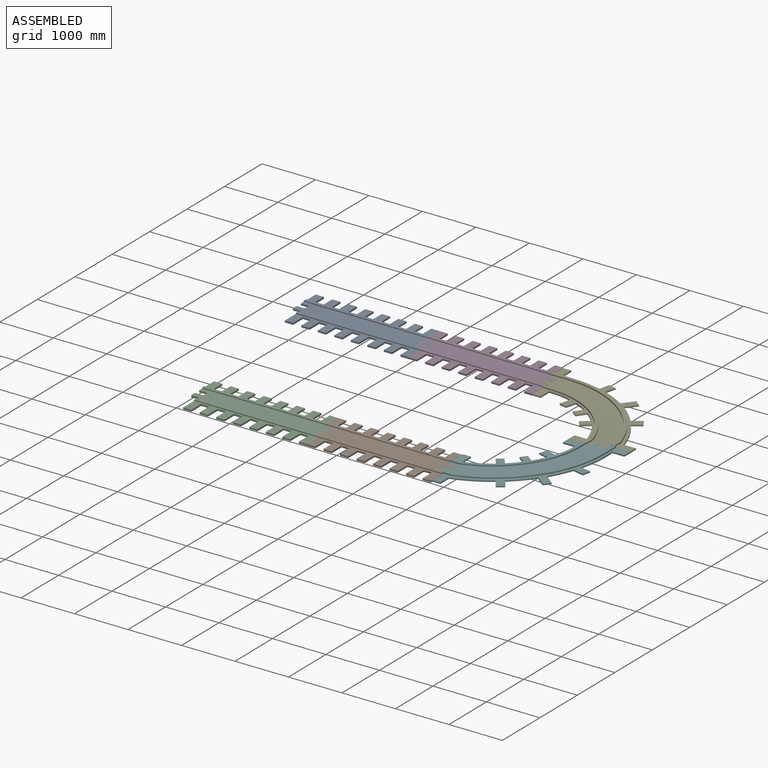
[diagram: assembled view]
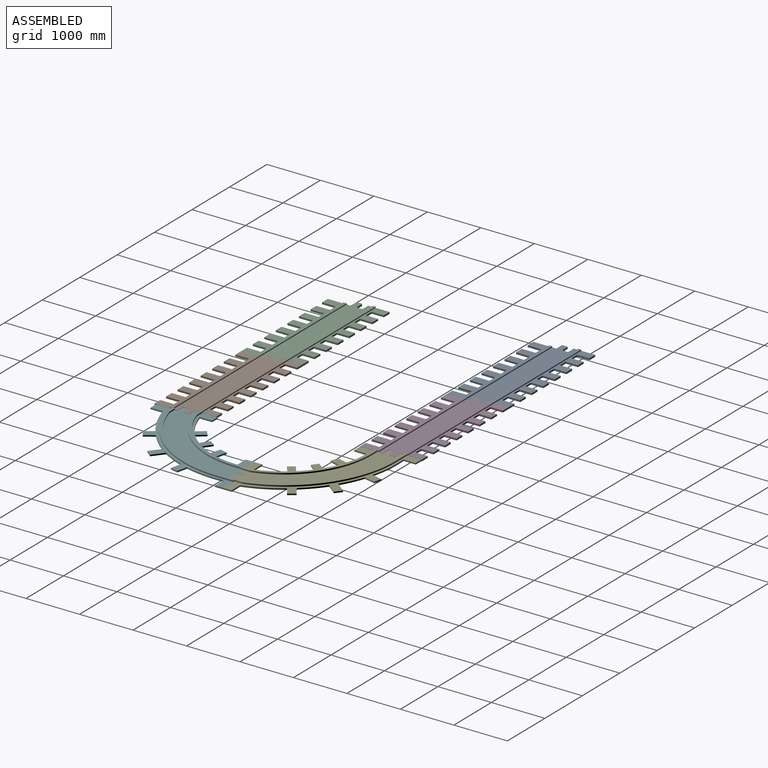
[diagram: assembled view, second angle]
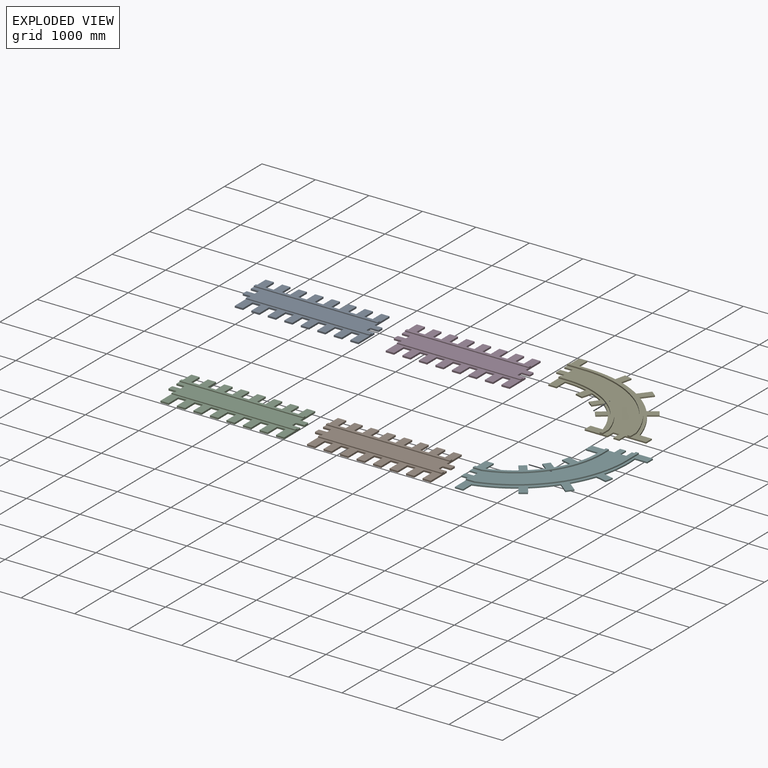
[diagram: exploded view]
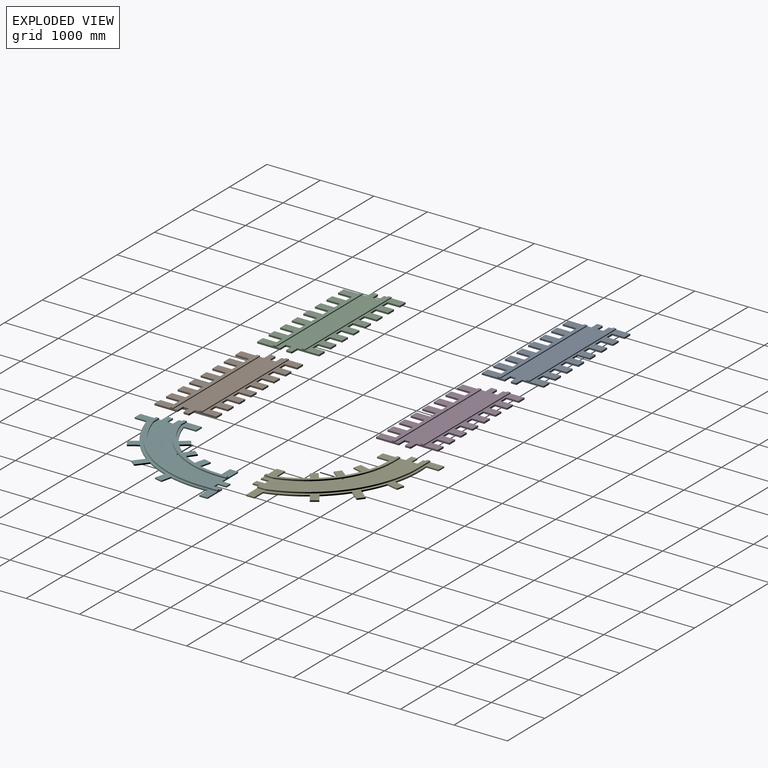
[diagram: exploded view, second angle]
ASSEMBLY  parts=6 mates=5
PART A: 97 faces, bbox 2469.2x1048.8x50.8 mm
  f0: plane 294.58x31.75mm, normal (-1,0,0), area 9353.1mm2, adj f3,f38,f86,f95
  f1: plane 81.11x31.75mm, normal (-1,0,0), area 2575.3mm2, adj f3,f28,f86,f88
  f2: plane 81.11x31.75mm, normal (1,0,0), area 2575.3mm2, adj f3,f76,f86,f88
  f3: plane 2468.9x728.98mm, normal (0,0,1), area 1276293.4mm2, adj f0,f1,f2,f28,f29,f30,f31,f32
  f4: plane 154.31x31.75mm, normal (0,1,0), area 4899.2mm2, adj f5,f84,f85,f86
  f5: plane 228.83x31.75mm, normal (1,0,0), area 7265.3mm2, adj f4,f6,f85,f86
  f6: plane 154.31x31.75mm, normal (0,1,0), area 4899.2mm2, adj f5,f7,f85,f86
  f7: plane 228.83x31.75mm, normal (-1,0,0), area 7265.3mm2, adj f6,f8,f85,f86
  f8: plane 154.31x31.75mm, normal (0,1,0), area 4899.2mm2, adj f7,f9,f85,f86
  f9: plane 228.83x31.75mm, normal (1,0,0), area 7265.3mm2, adj f8,f10,f85,f86
  f10: plane 154.31x31.75mm, normal (0,1,0), area 4899.2mm2, adj f9,f11,f85,f86
  f11: plane 228.83x31.75mm, normal (-1,0,0), area 7265.3mm2, adj f10,f12,f85,f86
  f12: plane 154.31x31.75mm, normal (0,1,0), area 4899.2mm2, adj f11,f13,f85,f86
  f13: plane 228.83x31.75mm, normal (1,0,0), area 7265.3mm2, adj f12,f14,f85,f86
  f14: plane 154.31x31.75mm, normal (0,1,0), area 4899.2mm2, adj f13,f15,f85,f86
  f15: plane 228.83x31.75mm, normal (-1,0,0), area 7265.3mm2, adj f14,f16,f85,f86
  f16: plane 154.31x31.75mm, normal (0,1,0), area 4899.2mm2, adj f15,f17,f85,f86
  f17: plane 227.75x31.75mm, normal (1,0,0), area 7231mm2, adj f16,f18,f85,f86
  f18: plane 154.31x31.75mm, normal (0,1,0), area 4899.2mm2, adj f17,f19,f85,f86
  f19: plane 227.75x31.75mm, normal (-1,0,0), area 7231mm2, adj f18,f20,f85,f86
  f20: plane 154.31x31.75mm, normal (0,1,0), area 4899.2mm2, adj f19,f21,f85,f86
  f21: plane 227.75x31.75mm, normal (1,0,0), area 7231mm2, adj f20,f22,f85,f86
  f22: plane 154.31x31.75mm, normal (0,1,0), area 4899.2mm2, adj f21,f23,f85,f86
  f23: plane 227.75x31.75mm, normal (-1,0,0), area 7231mm2, adj f22,f24,f85,f86
  f24: plane 154.31x31.75mm, normal (0,1,0), area 4899.2mm2, adj f23,f25,f85,f86
  f25: plane 227.75x31.75mm, normal (1,0,0), area 7231mm2, adj f24,f26,f85,f86
  f26: plane 154.31x31.75mm, normal (0,1,0), area 4899.2mm2, adj f25,f27,f85,f86
  f27: plane 261.62x31.75mm, normal (-1,0,0), area 8306.5mm2, adj f26,f85,f86,f90
  f28: plane 141.61x31.75mm, normal (0,-1,0), area 4496mm2, adj f1,f3,f29,f86
  f29: cylinder r=12.7mm len=31.75mm, axis (0,0,-1), area 633.4mm2, adj f3,f28,f30,f86
  f30: plane 84.61x31.75mm, normal (-1,0,0), area 2686.3mm2, adj f3,f29,f31,f86
  f31: cylinder r=12.7mm len=31.75mm, axis (0,0,-1), area 633.4mm2, adj f3,f30,f32,f86
  f32: plane 128.91x31.75mm, normal (0,1,0), area 4092.7mm2, adj f3,f31,f33,f86
  f33: cylinder r=12.7mm len=31.75mm, axis (0,0,-1), area 633.4mm2, adj f3,f32,f34,f86
  f34: plane 84.61x31.75mm, normal (-1,0,0), area 2686.3mm2, adj f3,f33,f35,f86
  f35: cylinder r=12.7mm len=31.75mm, axis (0,0,-1), area 633.4mm2, adj f3,f34,f36,f86
  f36: plane 141.61x31.75mm, normal (0,-1,0), area 4496mm2, adj f3,f35,f37,f86
  f37: plane 76.12x31.75mm, normal (-1,0,0), area 2416.8mm2, adj f3,f36,f86,f93
  f38: plane 154.31x31.75mm, normal (0,-1,0), area 4899.5mm2, adj f0,f3,f39,f86
  f39: plane 258.05x31.75mm, normal (1,0,0), area 8193.2mm2, adj f3,f38,f40,f86
  f40: plane 154.31x31.75mm, normal (0,-1,0), area 4899.2mm2, adj f3,f39,f41,f86
  f41: plane 258.05x31.75mm, normal (-1,0,0), area 8193.2mm2, adj f3,f40,f42,f86
  f42: plane 154.31x31.75mm, normal (0,-1,0), area 4899.5mm2, adj f3,f41,f43,f86
  f43: plane 258.05x31.75mm, normal (1,0,0), area 8193.2mm2, adj f3,f42,f44,f86
  f44: plane 154.31x31.75mm, normal (0,-1,0), area 4899.2mm2, adj f3,f43,f45,f86
  f45: plane 258.05x31.75mm, normal (-1,0,0), area 8193.2mm2, adj f3,f44,f46,f86
  f46: plane 154.31x31.75mm, normal (0,-1,0), area 4899.2mm2, adj f3,f45,f47,f86
  f47: plane 258.05x31.75mm, normal (1,0,0), area 8193.2mm2, adj f3,f46,f48,f86
  f48: plane 154.31x31.75mm, normal (0,-1,0), area 4899.2mm2, adj f3,f47,f49,f86
  f49: plane 258.05x31.75mm, normal (-1,0,0), area 8193.2mm2, adj f3,f48,f50,f86
  f50: plane 154.31x31.75mm, normal (0,-1,0), area 4899.2mm2, adj f3,f49,f51,f86
  f51: plane 258.05x31.75mm, normal (1,0,0), area 8193.2mm2, adj f3,f50,f52,f86
  f52: plane 154.31x31.75mm, normal (0,-1,0), area 4899.2mm2, adj f3,f51,f53,f86
  f53: plane 258.05x31.75mm, normal (-1,0,0), area 8193.2mm2, adj f3,f52,f54,f86
  f54: plane 154.31x31.75mm, normal (0,-1,0), area 4899.2mm2, adj f3,f53,f55,f86
  f55: plane 258.05x31.75mm, normal (1,0,0), area 8193.2mm2, adj f3,f54,f56,f86
  f56: plane 154.31x31.75mm, normal (0,-1,0), area 4899.2mm2, adj f3,f55,f57,f86
  f57: plane 258.05x31.75mm, normal (-1,0,0), area 8193.2mm2, adj f3,f56,f58,f86
  f58: plane 154.31x31.75mm, normal (0,-1,0), area 4899.2mm2, adj f3,f57,f59,f86
  f59: plane 258.05x31.75mm, normal (1,0,0), area 8193.2mm2, adj f3,f58,f60,f86
  f60: plane 154.31x31.75mm, normal (0,-1,0), area 4899.2mm2, adj f3,f59,f61,f86
  f61: plane 258.05x31.75mm, normal (-1,0,0), area 8193.2mm2, adj f3,f60,f62,f86
  f62: plane 154.31x31.75mm, normal (0,-1,0), area 4899.2mm2, adj f3,f61,f63,f86
  f63: plane 258.05x31.75mm, normal (1,0,0), area 8193.2mm2, adj f3,f62,f64,f86
  f64: plane 154.31x31.75mm, normal (0,-1,0), area 4899.2mm2, adj f3,f63,f65,f86
  f65: plane 258.05x31.75mm, normal (-1,0,0), area 8193.2mm2, adj f3,f64,f66,f86
  f66: plane 154.31x31.75mm, normal (0,-1,0), area 4899.2mm2, adj f3,f65,f67,f86
  f67: plane 427.85x31.75mm, normal (1,0,0), area 13584.4mm2, adj f3,f66,f68,f86
  f68: plane 141.61x31.75mm, normal (0,1,0), area 4496mm2, adj f3,f67,f69,f86
  f69: cylinder r=12.7mm len=31.75mm, axis (0,0,-1), area 633.4mm2, adj f3,f68,f70,f86
  f70: plane 84.61x31.75mm, normal (1,0,0), area 2686.3mm2, adj f3,f69,f71,f86
  f71: cylinder r=12.7mm len=31.75mm, axis (0,0,-1), area 633.4mm2, adj f3,f70,f72,f86
  f72: plane 128.91x31.75mm, normal (0,-1,0), area 4092.7mm2, adj f3,f71,f73,f86
  f73: cylinder r=12.7mm len=31.75mm, axis (0,0,-1), area 633.4mm2, adj f3,f72,f74,f86
  f74: plane 84.61x31.75mm, normal (1,0,0), area 2686.3mm2, adj f3,f73,f75,f86
  f75: cylinder r=12.7mm len=31.75mm, axis (0,0,-1), area 633.4mm2, adj f3,f74,f76,f86
  f76: plane 141.61x31.75mm, normal (0,1,0), area 4496mm2, adj f2,f3,f75,f86
  f77: plane 33.88x31.75mm, normal (1,0,0), area 1075.5mm2, adj f78,f85,f86,f90
  f78: plane 228.83x31.75mm, normal (1,0,0), area 7265.3mm2, adj f77,f79,f85,f86
  f79: plane 154.31x31.75mm, normal (0,1,0), area 4899.2mm2, adj f78,f80,f85,f86
  f80: plane 228.83x31.75mm, normal (-1,0,0), area 7265.3mm2, adj f79,f81,f85,f86
  f81: plane 154.31x31.75mm, normal (0,1,0), area 4899.2mm2, adj f80,f82,f85,f86
  f82: plane 228.83x31.75mm, normal (1,0,0), area 7265.3mm2, adj f81,f83,f85,f86
  f83: plane 154.31x31.75mm, normal (0,1,0), area 4899.2mm2, adj f82,f84,f85,f86
  f84: plane 228.83x31.75mm, normal (-1,0,0), area 7265.3mm2, adj f4,f83,f85,f86
  f85: plane 2314.58x262.7mm, normal (0,0,1), area 360381.5mm2, adj f4,f5,f6,f7,f8,f9,f10,f11
  f86: plane 2469.17x1048.84mm, normal (0,0,-1), area 1901254.5mm2, adj f0,f1,f2,f4,f5,f6,f7,f8
  f87: plane 57.15x50.8mm, normal (-1,0,0), area 2903.2mm2, adj f86,f88,f90,f91
  f88: plane 2314.86x50.8mm, normal (0,-1,0), area 44106.9mm2, adj f1,f2,f3,f86,f87,f89,f91
  f89: plane 57.15x50.8mm, normal (1,0,0), area 2903.2mm2, adj f86,f88,f90,f91
  f90: plane 2314.86x50.8mm, normal (0,1,0), area 44107.1mm2, adj f27,f77,f85,f86,f87,f89,f91
  f91: plane 2314.86x57.15mm, normal (0,0,1), area 132294.4mm2, adj f87,f88,f89,f90
  f92: plane 57.15x19.05mm, normal (1,0,0), area 1088.7mm2, adj f3,f93,f95,f96
  f93: plane 2314.7x50.8mm, normal (0,1,0), area 44104.6mm2, adj f3,f37,f86,f92,f94,f96
  f94: plane 57.15x50.8mm, normal (-1,0,0), area 2903.2mm2, adj f86,f93,f95,f96
  f95: plane 2314.7x50.8mm, normal (0,-1,0), area 44104.6mm2, adj f0,f3,f86,f92,f94,f96
  f96: plane 2314.7x57.15mm, normal (0,0,1), area 132285.3mm2, adj f92,f93,f94,f95
PART B: same geometry as A
PART C: same geometry as A
PART D: same geometry as A
PART E: 66 faces, bbox 2581.7x2050.4x50.8 mm
  f0: plane 2231.69x1730.81mm, normal (0,0,1), area 1057774.6mm2, adj f16,f17,f18,f19,f20,f21,f22,f40
  f1: plane 1666.7x1278.16mm, normal (0,0,1), area 246390mm2, adj f22,f23,f24,f25,f26,f27,f28,f29
  f2: plane 158.81x109.24mm, normal (0.57,-0.82,0), area 4895.9mm2, adj f3,f49,f50,f51
  f3: plane 121.4x83.51mm, normal (0.82,0.57,0), area 3742.7mm2, adj f2,f4,f50,f51
  f4: plane 166.29x114.38mm, normal (-0.57,0.82,0), area 5126.5mm2, adj f3,f5,f50,f51
  f5: cylinder r=2108.74mm len=373.74mm, axis (0,0,-1), area 13009.5mm2, adj f4,f6,f50,f51
  f6: plane 193.67x154.41mm, normal (0.78,-0.62,0), area 6291.2mm2, adj f5,f7,f50,f51
  f7: plane 113.94x90.84mm, normal (0.62,0.78,0), area 3701.2mm2, adj f6,f8,f50,f51
  f8: plane 202.68x161.59mm, normal (-0.78,0.62,0), area 6583.8mm2, adj f7,f9,f50,f51
  f9: cylinder r=2108.74mm len=421.24mm, axis (0,0,-1), area 11897.9mm2, adj f8,f10,f50,f51
  f10: plane 207.94x48.08mm, normal (0.97,-0.23,0), area 5421.1mm2, adj f9,f11,f50,f51
  f11: plane 143.19x33.11mm, normal (0.23,0.97,0), area 3733mm2, adj f10,f12,f50,f51
  f12: plane 197.13x45.65mm, normal (-0.97,0.23,0), area 5139.7mm2, adj f11,f13,f50,f51
  f13: cylinder r=2108.74mm len=731.09mm, axis (0,0,-1), area 18744.9mm2, adj f12,f14,f50,f51
  f14: plane 228.5x25.4mm, normal (1,0,0), area 5803.9mm2, adj f13,f15,f50,f51
  f15: plane 154.31x25.4mm, normal (0,1,0), area 3919.3mm2, adj f14,f16,f50,f51
  f16: plane 393.01x50.8mm, normal (-1,0,0), area 11434.2mm2, adj f0,f15,f17,f50,f51,f62,f63,f65
  f17: plane 154.31x25.4mm, normal (0,-1,0), area 3919.3mm2, adj f0,f16,f18,f51
  f18: plane 110.01x25.4mm, normal (-1,0,0), area 2794.2mm2, adj f0,f17,f19,f51
  f19: plane 154.31x25.4mm, normal (0,1,0), area 3919.3mm2, adj f0,f18,f20,f51
  f20: plane 110.01x25.4mm, normal (-1,0,0), area 2794.2mm2, adj f0,f19,f21,f51
  f21: plane 154.31x25.4mm, normal (0,-1,0), area 3919.3mm2, adj f0,f20,f22,f51
  f22: plane 427.86x50.8mm, normal (-1,0,0), area 12319.3mm2, adj f0,f1,f21,f23,f51,f54,f55,f58
  f23: plane 154.31x25.4mm, normal (0,-1,0), area 3919.3mm2, adj f1,f22,f24,f51
  f24: plane 228.5x25.4mm, normal (1,0,0), area 5803.9mm2, adj f1,f23,f25,f51
  f25: cylinder r=1506.46mm len=437.41mm, axis (0,0,-1), area 11256.3mm2, adj f1,f24,f26,f51
  f26: plane 204.19x53.66mm, normal (-0.97,0.25,0), area 5362.4mm2, adj f1,f25,f27,f51
  f27: plane 142.24x37.38mm, normal (-0.25,-0.97,0), area 3735.6mm2, adj f1,f26,f28,f51
  f28: plane 193.3x50.79mm, normal (0.97,-0.25,0), area 5076.4mm2, adj f1,f27,f29,f51
  f29: cylinder r=1506.46mm len=246.53mm, axis (0,0,-1), area 7049.6mm2, adj f1,f28,f30,f51
  f30: plane 151.11x112.51mm, normal (-0.8,0.6,0), area 4785.3mm2, adj f1,f29,f31,f51
  f31: plane 108.34x80.67mm, normal (-0.6,-0.8,0), area 3430.8mm2, adj f1,f30,f32,f51
  f32: plane 154.21x114.82mm, normal (0.8,-0.6,0), area 4883.4mm2, adj f1,f31,f33,f51
  f33: cylinder r=1506.46mm len=210.41mm, axis (0,0,-1), area 7329.7mm2, adj f1,f32,f34,f51
  f34: plane 149.11x115.59mm, normal (-0.61,0.79,0), area 4792.1mm2, adj f1,f33,f35,f51
  f35: plane 106.47x82.54mm, normal (-0.79,-0.61,0), area 3421.8mm2, adj f1,f34,f36,f51
  f36: plane 151.1x117.14mm, normal (0.61,-0.79,0), area 4856.1mm2, adj f1,f35,f37,f51
  f37: cylinder r=1506.46mm len=469.07mm, axis (0,0,-1), area 13357mm2, adj f1,f36,f38,f51
  f38: plane 228.5x25.4mm, normal (0,1,0), area 5803.9mm2, adj f1,f37,f39,f51
  f39: plane 154.31x25.4mm, normal (-1,0,0), area 3919.3mm2, adj f1,f38,f40,f51
  f40: plane 427.86x50.8mm, normal (0,-1,0), area 12319.3mm2, adj f0,f1,f39,f41,f51,f52,f57,f58
  f41: plane 154.31x25.4mm, normal (1,0,0), area 3919.3mm2, adj f0,f40,f42,f51
  f42: plane 110.01x25.4mm, normal (0,-1,0), area 2794.2mm2, adj f0,f41,f43,f51
  f43: plane 154.31x25.4mm, normal (-1,0,0), area 3919.3mm2, adj f0,f42,f44,f51
  f44: plane 110.01x25.4mm, normal (0,-1,0), area 2794.2mm2, adj f0,f43,f45,f51
  f45: plane 154.31x25.4mm, normal (1,0,0), area 3919.3mm2, adj f0,f44,f46,f51
  f46: plane 393.01x50.8mm, normal (0,-1,0), area 11434.2mm2, adj f0,f45,f47,f50,f51,f59,f60,f65
  f47: plane 154.31x25.4mm, normal (1,0,0), area 3919.3mm2, adj f46,f48,f50,f51
  f48: plane 228.5x25.4mm, normal (0,1,0), area 5803.9mm2, adj f47,f49,f50,f51
  f49: cylinder r=2108.74mm len=652.49mm, axis (0,0,-1), area 18550.8mm2, adj f2,f48,f50,f51
  f50: plane 2581.67x1896.14mm, normal (0,0,1), area 328376.6mm2, adj f2,f3,f4,f5,f6,f7,f8,f9
  f51: plane 2581.67x2050.45mm, normal (0,0,-1), area 1943502.6mm2, adj f2,f3,f4,f5,f6,f7,f8,f9
  f52: plane 162.65x25.4mm, normal (1,0,0), area 4131.4mm2, adj f0,f40,f53,f58
  f53: cylinder r=1636.8mm len=1569.61mm, axis (0,0,-1), area 53352.1mm2, adj f0,f52,f54,f58
  f54: plane 154.24x25.4mm, normal (0,1,0), area 3917.6mm2, adj f0,f22,f53,f58
  f55: plane 154.24x25.4mm, normal (0,-1,0), area 3917.6mm2, adj f1,f22,f56,f58
  f56: cylinder r=1579.65mm len=1512.46mm, axis (0,0,-1), area 51281mm2, adj f1,f55,f57,f58
  f57: plane 154.31x25.4mm, normal (-1,0,0), area 3919.3mm2, adj f1,f40,f56,f58
  f58: plane 1723.85x1335.31mm, normal (0,0,1), area 135583.9mm2, adj f22,f40,f52,f53,f54,f55,f56,f57
  f59: plane 150.95x25.4mm, normal (-1,0,0), area 3834.1mm2, adj f0,f46,f64,f65
  f60: plane 159.38x25.4mm, normal (1,0,0), area 4048.3mm2, adj f46,f50,f61,f65
  f61: cylinder r=2067.15mm len=1980.3mm, axis (0,0,-1), area 67201.9mm2, adj f50,f60,f62,f65
  f62: plane 308.54x25.4mm, normal (0,1,0), area 7836.9mm2, adj f16,f50,f61,f65
  f63: plane 308.54x25.4mm, normal (0,-1,0), area 7836.9mm2, adj f0,f16,f64,f65
  f64: cylinder r=2010mm len=1923.15mm, axis (0,0,-1), area 65132.8mm2, adj f0,f59,f63,f65
  f65: plane 2288.84x1633.65mm, normal (0,0,1), area 175377.5mm2, adj f16,f46,f59,f60,f61,f62,f63,f64
PART F: same geometry as E
PLACE A t=(153.58,127.5,757.81)mm
PLACE B t=(2999.39,-3344.27,757.81)mm
PLACE C t=(684.8,-3344.27,757.81)mm
PLACE D t=(2468.17,127.5,757.81)mm
PLACE E t=(2591.28,180.31,760.99)mm
PLACE F rot(axis=(0,0,-1),90deg) t=(4709.63,-1498.75,760.99)mm
MATE fastened B.f74 <-> F.f42  axis (1,0,0) through (3153.7,-3399.28,773.69)mm
MATE fastened D.f34 <-> A.f70  axis (-1,0,0) through (153.58,-37.51,773.69)mm
MATE fastened E.f20 <-> D.f70  axis (-1,0,0) through (2468.17,-37.51,773.69)mm
MATE fastened C.f74 <-> B.f30  axis (1,0,0) through (839.1,-3399.28,773.69)mm
MATE fastened F.f18 <-> E.f44  axis (0,1,0) through (4601.82,-1529.94,773.69)mm
